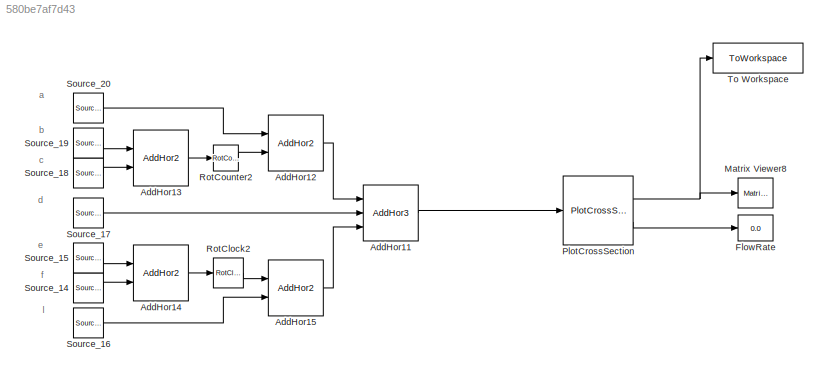
MODEL slx_580be7af7d43
KIND model
CONFIG AbsTol = auto
CONFIG EnableMultiTasking = off
CONFIG FixedStep = auto
CONFIG MaxStep = auto
CONFIG MinStep = auto
CONFIG RelTol = 1e-3
CONFIG SampleTimeConstraint = Unconstrained
CONFIG SolverName = VariableStepAuto
CONFIG StartTime = 0.0
CONFIG StopTime = 10.0
BLOCK [Reference] AddHor11  REF=myLib_CustomBoolean/AddHor3
  Ports = [3, 1]
  SourceBlock = myLib_CustomBoolean/AddHor3
  SourceProductName = Boolean_Custom_Library
BLOCK [Reference] AddHor12  REF=myLib_CustomBoolean/AddHor2
  Ports = [2, 1]
  SourceBlock = myLib_CustomBoolean/AddHor2
  SourceProductName = Boolean_Custom_Library
BLOCK [Reference] AddHor13  REF=myLib_CustomBoolean/AddHor2
  Ports = [2, 1]
  SourceBlock = myLib_CustomBoolean/AddHor2
  SourceProductName = Boolean_Custom_Library
BLOCK [Reference] AddHor14  REF=myLib_CustomBoolean/AddHor2
  Ports = [2, 1]
  SourceBlock = myLib_CustomBoolean/AddHor2
  SourceProductName = Boolean_Custom_Library
BLOCK [Reference] AddHor15  REF=myLib_CustomBoolean/AddHor2
  Ports = [2, 1]
  SourceBlock = myLib_CustomBoolean/AddHor2
  SourceProductName = Boolean_Custom_Library
BLOCK [Display] FlowRate
  Decimation = 1
  Ports = [1]
BLOCK [Reference] Matrix Viewer8  REF=dspobslib/Matrix
Viewer
  Ports = [1]
  SourceBlock = dspobslib/Matrix\nViewer
  SourceProductBaseCode = DS
  SourceType = Matrix Viewer
BLOCK [Reference] PlotCrossSection  REF=myLib_CustomBoolean/PlotCrossSection
  Ports = [1, 2]
  SourceBlock = myLib_CustomBoolean/PlotCrossSection
  SourceProductName = Boolean_Custom_Library
  SourceType = SubSystem
BLOCK [Reference] RotClock2  REF=myLib_CustomBoolean/RotClock
  Ports = [1, 1]
  SourceBlock = myLib_CustomBoolean/RotClock
  SourceProductName = Boolean_Custom_Library
BLOCK [Reference] RotCounter2  REF=myLib_CustomBoolean/RotCounter
  Ports = [1, 1]
  SourceBlock = myLib_CustomBoolean/RotCounter
  SourceProductName = Boolean_Custom_Library
BLOCK [Reference] Source_14  REF=myLib_CustomBoolean/Source_0
  Ports = [0, 1]
  SourceBlock = myLib_CustomBoolean/Source_0
  SourceProductName = Boolean_Custom_Library
BLOCK [Reference] Source_15  REF=myLib_CustomBoolean/Source_1
  Ports = [0, 1]
  SourceBlock = myLib_CustomBoolean/Source_1
  SourceProductName = Boolean_Custom_Library
BLOCK [Reference] Source_16  REF=myLib_CustomBoolean/Source_1
  Ports = [0, 1]
  SourceBlock = myLib_CustomBoolean/Source_1
  SourceProductName = Boolean_Custom_Library
BLOCK [Reference] Source_17  REF=myLib_CustomBoolean/Source_1
  Ports = [0, 1]
  SourceBlock = myLib_CustomBoolean/Source_1
  SourceProductName = Boolean_Custom_Library
BLOCK [Reference] Source_18  REF=myLib_CustomBoolean/Source_0
  Ports = [0, 1]
  SourceBlock = myLib_CustomBoolean/Source_0
  SourceProductName = Boolean_Custom_Library
BLOCK [Reference] Source_19  REF=myLib_CustomBoolean/Source_1
  Ports = [0, 1]
  SourceBlock = myLib_CustomBoolean/Source_1
  SourceProductName = Boolean_Custom_Library
BLOCK [Reference] Source_20  REF=myLib_CustomBoolean/Source_1
  Ports = [0, 1]
  SourceBlock = myLib_CustomBoolean/Source_1
  SourceProductName = Boolean_Custom_Library
BLOCK [ToWorkspace] To Workspace
  FixptAsFi = on
  MaxDataPoints = inf
  Ports = [1]
  SampleTime = 51
  VariableName = extrudateArray
ANNOTATION (root): a
ANNOTATION (root): b
ANNOTATION (root): c
ANNOTATION (root): d
ANNOTATION (root): e
ANNOTATION (root): f
ANNOTATION (root): l
LINE AddHor11:1 -> PlotCrossSection:1
LINE AddHor12:1 -> AddHor11:1
LINE AddHor13:1 -> RotCounter2:1
LINE AddHor14:1 -> RotClock2:1
LINE AddHor15:1 -> AddHor11:3
NET PlotCrossSection:1 -> Matrix Viewer8:1, To Workspace:1
LINE PlotCrossSection:2 -> FlowRate:1
LINE RotClock2:1 -> AddHor15:1
LINE RotCounter2:1 -> AddHor12:2
LINE Source_14:1 -> AddHor14:2
LINE Source_15:1 -> AddHor14:1
LINE Source_16:1 -> AddHor15:2
LINE Source_17:1 -> AddHor11:2
LINE Source_18:1 -> AddHor13:2
LINE Source_19:1 -> AddHor13:1
LINE Source_20:1 -> AddHor12:1
note: NET lines group one-source signal fan-out (src -> all destinations, sorted); 1:1 wires keep LINE
